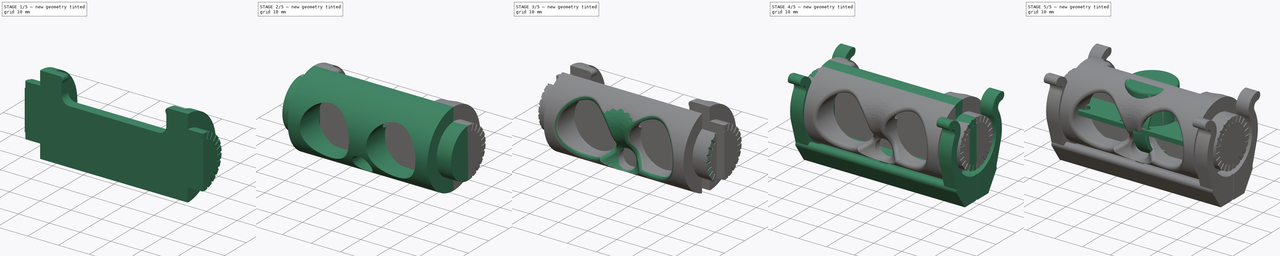
[diagram: build sequence overview — one tinted view per stage of 5, left to right]
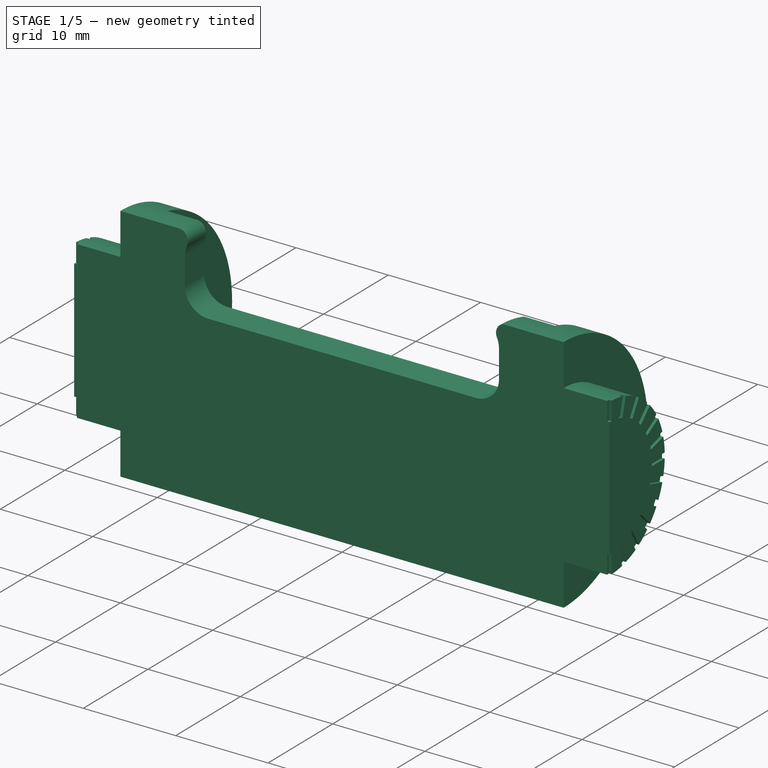
[diagram: stage 1 of 5 — iso view after this stage's code; geometry added in this stage tinted green]
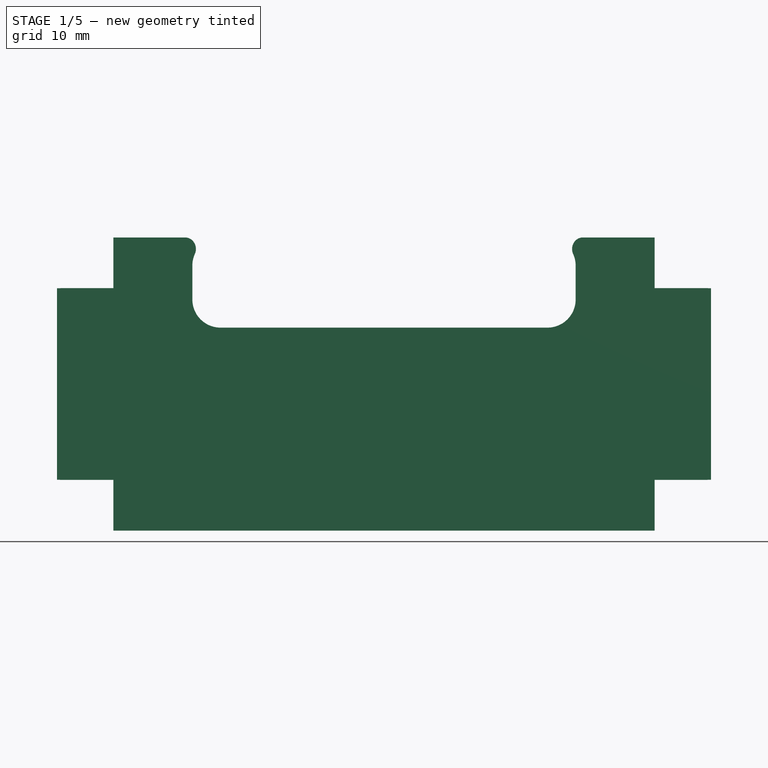
[diagram: stage 1 of 5 — front view after this stage's code; geometry added in this stage tinted green]
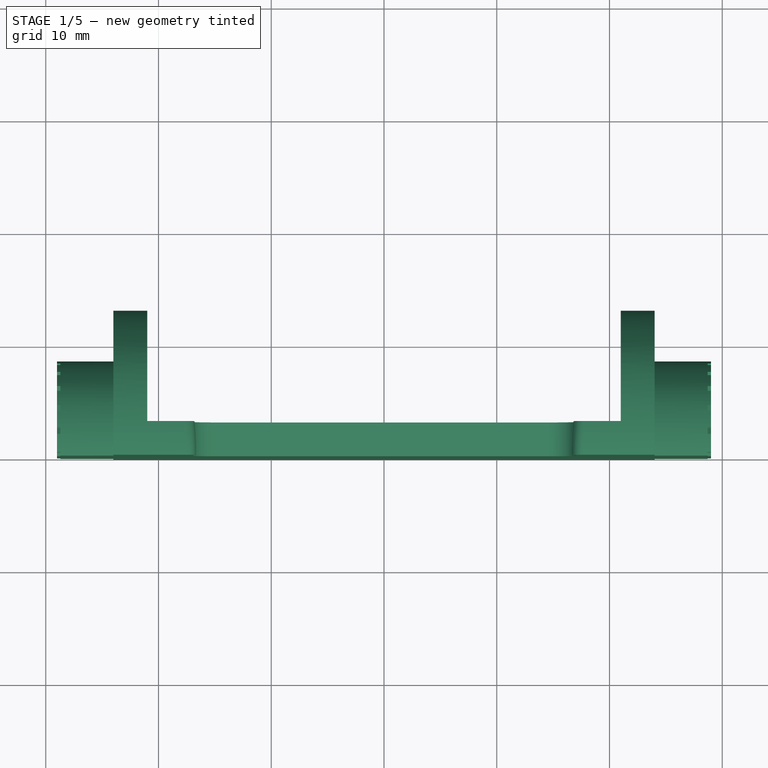
[diagram: stage 1 of 5 — top view after this stage's code; geometry added in this stage tinted green]
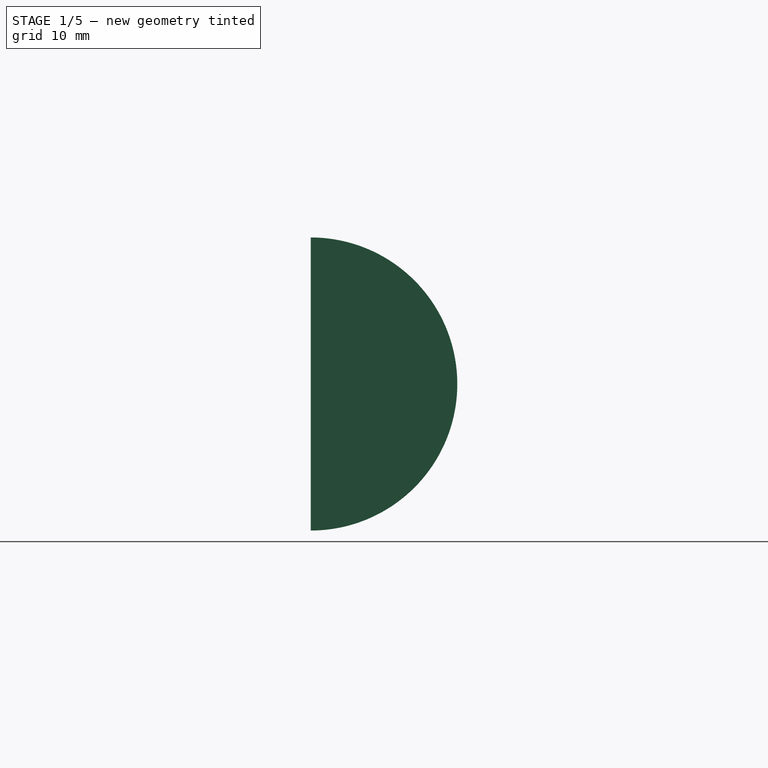
[diagram: stage 1 of 5 — right view after this stage's code; geometry added in this stage tinted green]
FCSTD DOCUMENT  (FreeCAD 1.0R39109 (Git))
Label: Capteur_ultrason_SRF08
License: All rights reserved
LicenseURL: http://en.wikipedia.org/wiki/All_rights_reserved
objects: Sketcher::SketchObject×22, PartDesign::Pocket×12, PartDesign::Body×7, PartDesign::Pad×7, PartDesign::Mirrored×7, PartDesign::Fillet×6, PartDesign::MultiTransform×5, App::Link×3, Part::FeaturePython×3, App::Part×3, PartDesign::Revolution×2, PartDesign::PolarPattern×2, Image::ImagePlane×2, PartDesign::Groove×1, Part::Part2DObjectPython×1, Part::Extrusion×1, App::DocumentObjectGroup×1
note: 168 computed .brp shape members not serialized (recipe doc carries the construction recipe); baked Part::Feature solids carry a one-line shape summary decoded from their .brp

FEATURE [Sketcher::SketchObject] Sketch010
  ArcFitTolerance = 0
  AttachmentSupport = -> [XZ_Plane006]
  FullyConstrained = true
  MakeInternals = false
  MapMode = 5
  Placement = pos=(0,0,0) rot=(1,0,0;1.5708rad)
  sketch-geometry (6):
    g0: LineSegment StartX=0 StartY=13 StartZ=0 EndX=24 EndY=13 EndZ=0
    g1: LineSegment StartX=0 StartY=0 StartZ=0 EndX=0 EndY=13 EndZ=0
    g2: LineSegment StartX=29 StartY=0 StartZ=0 EndX=29 EndY=8.5 EndZ=0
    g3: LineSegment StartX=29 StartY=8.5 StartZ=0 EndX=24 EndY=8.5 EndZ=0
    g4: LineSegment StartX=24 StartY=13 StartZ=0 EndX=24 EndY=8.5 EndZ=0
    g5: LineSegment StartX=0 StartY=0 StartZ=0 EndX=29 EndY=0 EndZ=0
  constraints (17):
    c: Coincident(g1,g0)
    c: Horizontal(g0)
    c: PointOnObject(g0,g-2)
    c: Coincident(g2,g3)
    c: Horizontal(g3)
    c: Vertical(g2)
    c: Coincident(g4,g0)
    c: Coincident(g4,g3)
    c: Vertical(g4)
    c: DistanceX(g0,g0) = 24
    c: DistanceX(g3,g3) = 5
    c: DistanceY(g4,g4) = 4.5
    c: Coincident(g5,g-1)
    c: Horizontal(g5)
    c: Coincident(g2,g5)
    c: DistanceY(g1,g1) = 13
    c: Coincident(g1,g5)
FEATURE [PartDesign::Mirrored] Mirrored001
  MirrorPlane = -> Sketch010 [V_Axis]
  Placement = pos=(0,0,0) rot=(1,0,0;1.5708rad)
  Suppressed = false
  TransformMode = 0
FEATURE [PartDesign::Revolution] Revolution001
  Angle = 180
  Angle2 = 60
  Axis = (1,0,0)
  Base = (0,0,0)
  Placement = pos=(0,0,0) rot=(1,0,0;1.5708rad)
  Profile = -> Sketch010
  ReferenceAxis = -> Sketch010 [H_Axis]
  Reversed = true
  Suppressed = false
  Type = 0
FEATURE [Sketcher::SketchObject] Sketch016
  ArcFitTolerance = 0
  AttachmentSupport = -> [XZ_Plane006]
  FullyConstrained = true
  MakeInternals = false
  MapMode = 5
  Placement = pos=(0,0,0) rot=(0,0.707107,0.707107;3.14159rad)
  sketch-geometry (6):
    g0: LineSegment StartX=-14.5 StartY=5 StartZ=0 EndX=0 EndY=5 EndZ=0
    g1: LineSegment StartX=0 StartY=5 StartZ=0 EndX=0 EndY=13 EndZ=0
    g2: LineSegment StartX=-14.5 StartY=13 StartZ=0 EndX=0 EndY=13 EndZ=0
    g3: ArcOfCircle CenterX=-14.5 CenterY=7.5 CenterZ=0 NormalX=0 NormalY=0 NormalZ=1 AngleXU=0 Radius=2.5 StartAngle=3.14159 EndAngle=4.71239
    g4: ArcOfCircle CenterX=-14.5 CenterY=10.5 CenterZ=0 NormalX=0 NormalY=0 NormalZ=1 AngleXU=0 Radius=2.5 StartAngle=1.5708 EndAngle=3.14159
    g5: LineSegment StartX=-17 StartY=7.5 StartZ=0 EndX=-17 EndY=10.5 EndZ=0
  constraints (16):
    c: Coincident(g0,g1)
    c: Horizontal(g0)
    c: Vertical(g1)
    c: PointOnObject(g1,g-2)
    c: Horizontal(g2)
    c: Coincident(g1,g2)
    c: DistanceY(g1) = 13
    c: Tangent(g0,g3) = -1.5708
    c: DistanceY(g1,g1) = 8
    c: Tangent(g4,g2) = 1.5708
    c: Tangent(g4,g5) = 1.5708
    c: Tangent(g5,g3) = 1.5708
    c: DistanceX(g0,g0) = 14.5
    c: Vertical(g5)
    c: Equal(g4,g3)
    c: Diameter(g4) = 5
FEATURE [PartDesign::Pocket] Pocket007
  BaseFeature = -> Revolution001
  Direction = (0,-1,2e-16)
  Length = 5
  Length2 = 5
  Placement = pos=(0,0,0) rot=(1,0,0;1.5708rad)
  Profile = -> Sketch016
  ReferenceAxis = -> Sketch016 [N_Axis]
  Reversed = true
  Suppressed = false
  Type = 1
FEATURE [PartDesign::MultiTransform] MultiTransform001
  BaseFeature = -> Pocket007
  Originals = -> [Revolution001,Pocket007]
  Placement = pos=(0,0,0) rot=(1,0,0;1.5708rad)
  Refine = true
  Suppressed = false
  TransformMode = 0
  Transformations = -> [Mirrored001]
FEATURE [PartDesign::Body] Body003  label="avant"
  AllowCompound = false
  Group = -> [Sketch004,Pad002,Sketch005,Pad003,Sketch006,Pocket001,Sketch007,Pocket002,Sketch008,Pocket003,Sketch009,Pocket004,MultiTransform,Mirrored,Sketch019,Groove,Fillet004,Fillet005,Sketch020,Pocket008,MultiTransform003,PolarPattern,Mirrored004]
  Origin = -> Origin004
  Tip = -> MultiTransform003
FEATURE [Sketcher::SketchObject] Sketch021
  ArcFitTolerance = 0
  AttachmentOffset = pos=(0,0,3) rot=(0,0,1;0rad)
  AttachmentSupport = -> [XZ_Plane006]
  FullyConstrained = true
  MakeInternals = false
  MapMode = 5
  Placement = pos=(0,3,-7e-16) rot=(0,0.707107,0.707107;3.14159rad)
  sketch-geometry (4):
    g0: LineSegment StartX=-21 StartY=15 StartZ=0 EndX=21 EndY=15 EndZ=0
    g1: LineSegment StartX=21 StartY=15 StartZ=0 EndX=21 EndY=-15 EndZ=0
    g2: LineSegment StartX=21 StartY=-15 StartZ=0 EndX=-21 EndY=-15 EndZ=0
    g3: LineSegment StartX=-21 StartY=-15 StartZ=0 EndX=-21 EndY=15 EndZ=0
  constraints (11):
    c: Coincident(g0,g1)
    c: Coincident(g1,g2)
    c: Coincident(g2,g3)
    c: Coincident(g3,g0)
    c: Horizontal(g0)
    c: Horizontal(g2)
    c: Vertical(g1)
    c: Vertical(g3)
    c: Symmetric(g1,g0,g-1)
    c: DistanceY(g1,g1) = 30
    c: DistanceX(g0,g0) = 42
FEATURE [PartDesign::Pocket] Pocket009
  BaseFeature = -> MultiTransform001
  Direction = (0,-1,2e-16)
  Length = 5
  Length2 = 5
  Placement = pos=(0,0,0) rot=(1,0,0;1.5708rad)
  Profile = -> Sketch021
  ReferenceAxis = -> Sketch021 [N_Axis]
  Reversed = true
  Suppressed = false
  Type = 1
FEATURE [Sketcher::SketchObject] Sketch022
  ArcFitTolerance = 0
  AttachmentOffset = pos=(0,0,29) rot=(0,0,1;0rad)
  AttachmentSupport = -> [YZ_Plane006]
  FullyConstrained = true
  MakeInternals = false
  MapMode = 5
  Placement = pos=(29,0,0) rot=(0.57735,0.57735,0.57735;2.0944rad)
  sketch-geometry (4):
    g0: LineSegment StartX=-0.3 StartY=6.5 StartZ=0 EndX=0.3 EndY=6.5 EndZ=0
    g1: LineSegment StartX=0.3 StartY=6.5 StartZ=0 EndX=0.3 EndY=8.5 EndZ=0
    g2: LineSegment StartX=0.3 StartY=8.5 StartZ=0 EndX=-0.3 EndY=8.5 EndZ=0
    g3: LineSegment StartX=-0.3 StartY=8.5 StartZ=0 EndX=-0.3 EndY=6.5 EndZ=0
  constraints (11):
    c: Coincident(g0,g1)
    c: Coincident(g1,g2)
    c: Coincident(g2,g3)
    c: Coincident(g3,g0)
    c: Horizontal(g2)
    c: Vertical(g1)
    c: Vertical(g3)
    c: Symmetric(g0,g0,g-2)
    c: DistanceY(g-1,g0) = 6.5
    c: DistanceY(g3,g3) = 2
    c: DistanceX(g2,g2) = 0.6
FEATURE [PartDesign::Pocket] Pocket010
  BaseFeature = -> Pocket009
  Direction = (-1,0,0)
  Length = 0.3
  Length2 = 5
  Placement = pos=(0,0,0) rot=(1,0,0;1.5708rad)
  Profile = -> Sketch022
  ReferenceAxis = -> Sketch022 [N_Axis]
  Suppressed = false
  Type = 0
FEATURE [PartDesign::PolarPattern] PolarPattern001
  Angle = 180
  Axis = -> Sketch022 [N_Axis]
  Mode = 0
  Occurrences = 13
  Offset = 120
  Placement = pos=(0,0,0) rot=(1,0,0;1.5708rad)
  Reversed = true
  Suppressed = false
  TransformMode = 0
FEATURE [PartDesign::Mirrored] Mirrored005
  MirrorPlane = -> YZ_Plane006
  Placement = pos=(0,0,0) rot=(1,0,0;1.5708rad)
  Suppressed = false
  TransformMode = 0
FEATURE [PartDesign::MultiTransform] MultiTransform004
  BaseFeature = -> Pocket010
  Originals = -> [Pocket010]
  Placement = pos=(0,0,0) rot=(1,0,0;1.5708rad)
  Suppressed = false
  TransformMode = 0
  Transformations = -> [PolarPattern001,Mirrored005]
FEATURE [App::DocumentObjectGroup] GrExplode_Slice  label="Exploded Slice"
  Group = -> [Slice_child0,Slice_child1]
FEATURE [Image::ImagePlane] srf08con
  Placement = pos=(0,0,0) rot=(-0.707107,-0.707107,0;3.14159rad)
  XSize = 20.3895
  YSize = 43.9428
FEATURE [PartDesign::Fillet] Fillet006
  Base = -> MultiTransform004 [Edge190,Edge196]
  BaseFeature = -> MultiTransform004
  Placement = pos=(0,0,0) rot=(1,0,0;1.5708rad)
  Radius = 1
  SupportTransform = false
  Suppressed = false
  UseAllEdges = false
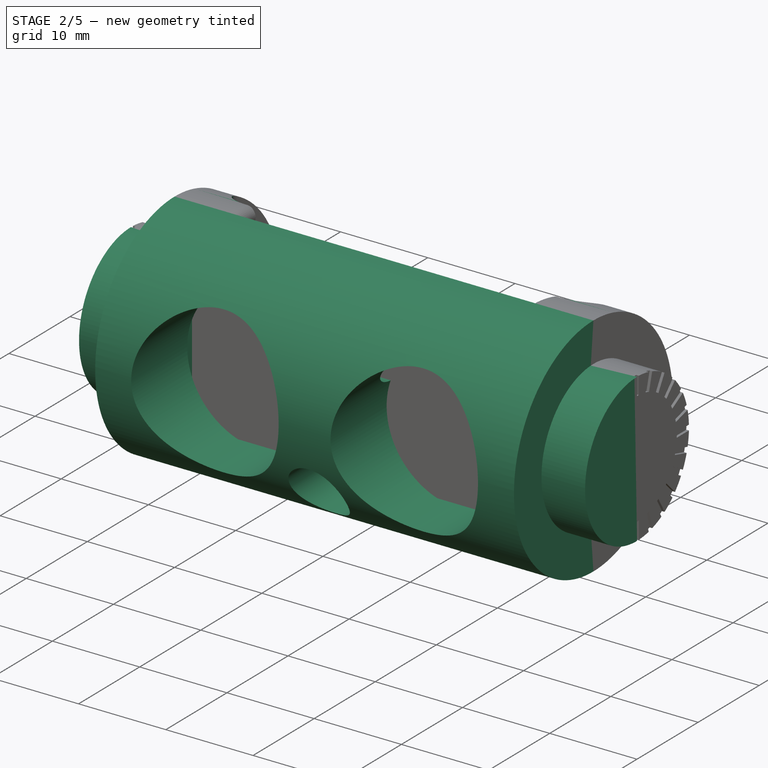
[diagram: stage 2 of 5 — iso view after this stage's code; geometry added in this stage tinted green]
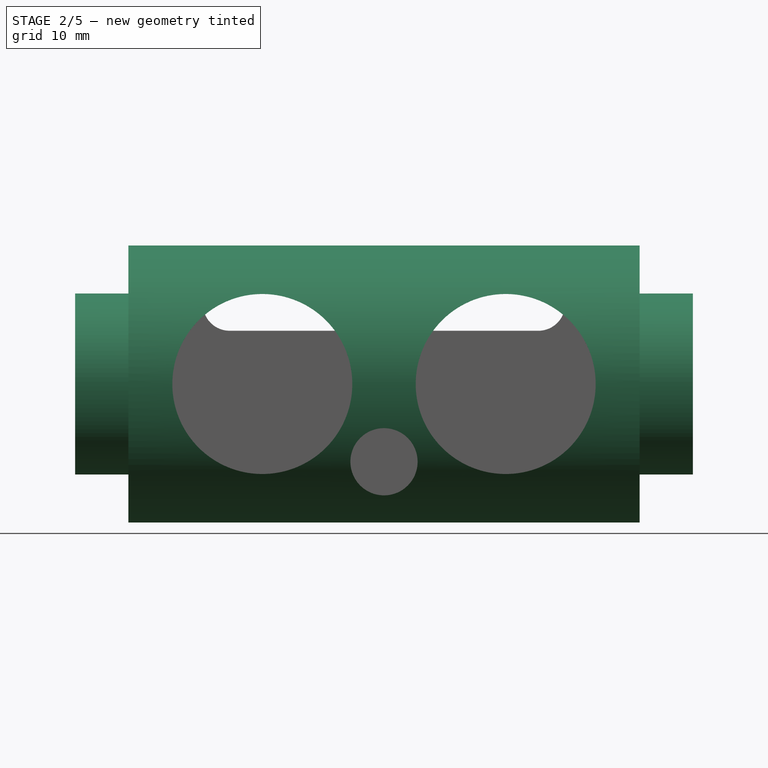
[diagram: stage 2 of 5 — front view after this stage's code; geometry added in this stage tinted green]
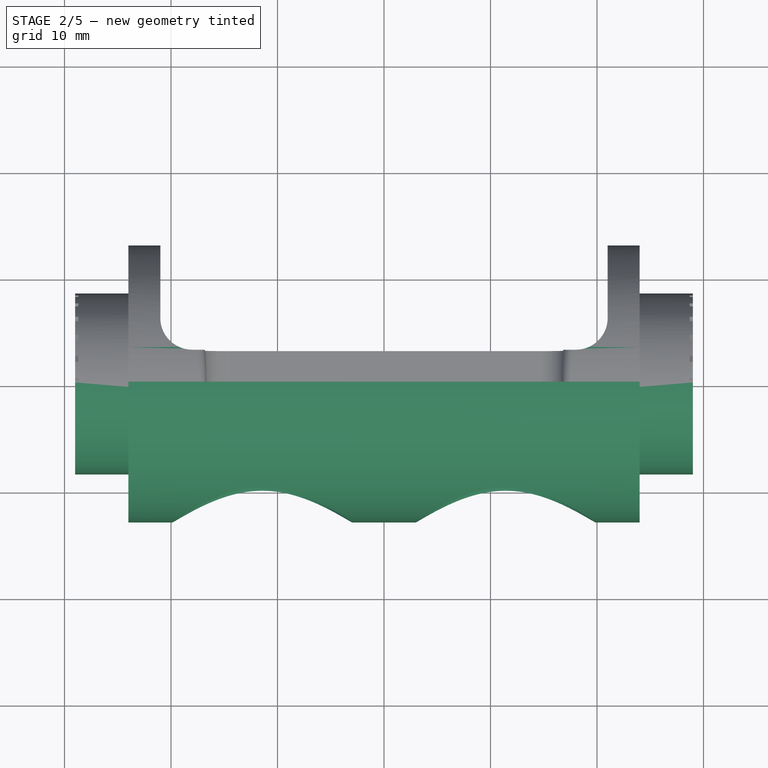
[diagram: stage 2 of 5 — top view after this stage's code; geometry added in this stage tinted green]
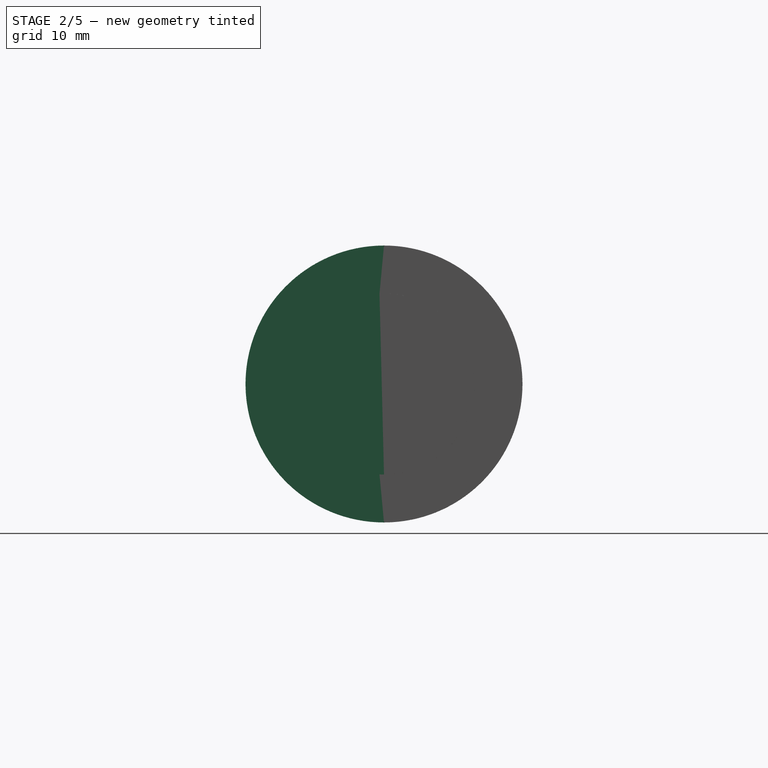
[diagram: stage 2 of 5 — right view after this stage's code; geometry added in this stage tinted green]
FEATURE [PartDesign::Body] Body  label="PCB"
  AllowCompound = false
  Group = -> [Sketch,Pad]
  Origin = -> Origin001
  Tip = -> Pad
FEATURE [App::Link] Link001  label="anneau001"
  LinkPlacement = pos=(-24,7.62876e-07,0) rot=(0,0,1;3.14159rad)
  LinkedObject = -> Body005
  Placement = pos=(-24,7.62876e-07,0) rot=(0,0,1;3.14159rad)
FEATURE [PartDesign::Mirrored] Mirrored
  MirrorPlane = -> YZ_Plane004
  Placement = pos=(0,0,0) rot=(1,1,1;2.0944rad)
  Suppressed = false
  TransformMode = 0
FEATURE [PartDesign::Mirrored] Mirrored003
  MirrorPlane = -> YZ_Plane008
  Placement = pos=(0,0,0) rot=(1,1,1;2.0944rad)
  Suppressed = false
  TransformMode = 0
FEATURE [Sketcher::SketchObject] Sketch004
  ArcFitTolerance = 0
  AttachmentSupport = -> [YZ_Plane004]
  FullyConstrained = true
  MakeInternals = false
  MapMode = 5
  Placement = pos=(0,0,0) rot=(0.57735,0.57735,0.57735;2.0944rad)
  sketch-geometry (2):
    g0: ArcOfCircle CenterX=0 CenterY=0 CenterZ=0 NormalX=0 NormalY=0 NormalZ=1 AngleXU=0 Radius=13 StartAngle=1.5708 EndAngle=4.71239
    g1: LineSegment StartX=-2.4e-15 StartY=13 StartZ=0 EndX=-2.4e-15 EndY=-13 EndZ=0
  constraints (6):
    c: Diameter(g0) = 26
    c: Coincident(g0,g1)
    c: PointOnObject(g0,g-2)
    c: Vertical(g1)
    c: Coincident(g1,g0)
    c: Coincident(g0,g-1)
FEATURE [PartDesign::Pad] Pad002
  Direction = (1,0,0)
  Length = 24
  Length2 = 10
  Placement = pos=(0,0,0) rot=(1,1,1;2.0944rad)
  Profile = -> Sketch004
  ReferenceAxis = -> Sketch004 [N_Axis]
  Suppressed = false
  Type = 0
FEATURE [Sketcher::SketchObject] Sketch005
  ArcFitTolerance = 0
  AttachmentOffset = pos=(0,0,24) rot=(0,0,1;0rad)
  AttachmentSupport = -> [YZ_Plane004]
  FullyConstrained = true
  MakeInternals = false
  MapMode = 5
  Placement = pos=(24,0,0) rot=(0.57735,0.57735,0.57735;2.0944rad)
  expr: .AttachmentOffset.Base.z = <<Pad002>>.Length
  sketch-geometry (2):
    g0: ArcOfCircle CenterX=0 CenterY=0 CenterZ=0 NormalX=0 NormalY=0 NormalZ=1 AngleXU=0 Radius=8.5 StartAngle=1.5708 EndAngle=4.71239
    g1: LineSegment StartX=2.09785e-11 StartY=8.5 StartZ=0 EndX=2.09785e-11 EndY=-8.5 EndZ=0
  constraints (6):
    c: Coincident(g0,g-1)
    c: Vertical(g1)
    c: Coincident(g0,g1)
    c: Coincident(g0,g1)
    c: PointOnObject(g0,g-2)
    c: Diameter(g0) = 17
FEATURE [PartDesign::Pad] Pad003
  BaseFeature = -> Pad002
  Direction = (1,0,0)
  Length = 5
  Length2 = 10
  Placement = pos=(0,0,0) rot=(1,1,1;2.0944rad)
  Profile = -> Sketch005
  ReferenceAxis = -> Sketch005 [N_Axis]
  Suppressed = false
  Type = 0
FEATURE [Sketcher::SketchObject] Sketch006
  ArcFitTolerance = 0
  AttachmentSupport = -> [YZ_Plane004]
  FullyConstrained = true
  MakeInternals = false
  MapMode = 5
  Placement = pos=(0,0,0) rot=(0.57735,-0.57735,-0.57735;2.0944rad)
  expr: Constraints[10] = 10 + 0.2
  expr: Constraints[9] = 1.52 + 0.3 + 2
  sketch-geometry (4):
    g0: LineSegment StartX=0 StartY=10.2 StartZ=0 EndX=3.82 EndY=10.2 EndZ=0
    g1: LineSegment StartX=3.82 StartY=10.2 StartZ=0 EndX=3.82 EndY=-10.2 EndZ=0
    g2: LineSegment StartX=3.82 StartY=-10.2 StartZ=0 EndX=0 EndY=-10.2 EndZ=0
    g3: LineSegment StartX=0 StartY=-10.2 StartZ=0 EndX=0 EndY=10.2 EndZ=0
  constraints (11):
    c: Coincident(g0,g1)
    c: Coincident(g1,g2)
    c: Coincident(g2,g3)
    c: Coincident(g3,g0)
    c: Horizontal(g0)
    c: Horizontal(g2)
    c: Vertical(g1)
    c: Vertical(g3)
    c: Symmetric(g0,g2,g-1)
    c: DistanceX(g0) = 3.82
    c: DistanceY(g0) = 10.2
FEATURE [PartDesign::Pocket] Pocket001
  BaseFeature = -> Pad003
  Direction = (1,0,0)
  Length = 22
  Length2 = 5
  Placement = pos=(0,0,0) rot=(1,1,1;2.0944rad)
  Profile = -> Sketch006
  ReferenceAxis = -> Sketch006 [N_Axis]
  Suppressed = false
  Type = 0
FEATURE [Sketcher::SketchObject] Sketch007
  ArcFitTolerance = 0
  AttachmentOffset = pos=(11.425,0,0) rot=(0,0,1;0rad)
  AttachmentSupport = -> [XZ_Plane004]
  FullyConstrained = true
  MakeInternals = false
  MapMode = 5
  Placement = pos=(11.425,0,0) rot=(1,0,0;1.5708rad)
  expr: .AttachmentOffset.Base.x = 22.85 / 2
  sketch-geometry (1):
    g0: Circle CenterX=0 CenterY=0 CenterZ=0 NormalX=0 NormalY=0 NormalZ=1 AngleXU=0 Radius=8.45
  constraints (2):
    c: Coincident(g0,g-1)
    c: Diameter(g0) = 16.9
FEATURE [PartDesign::Pocket] Pocket002
  BaseFeature = -> Pocket001
  Direction = (0,1,-2e-16)
  Length = 5
  Length2 = 5
  Placement = pos=(0,0,0) rot=(1,1,1;2.0944rad)
  Profile = -> Sketch007
  ReferenceAxis = -> Sketch007 [N_Axis]
  Reversed = true
  Suppressed = false
  Type = 1
FEATURE [Sketcher::SketchObject] Sketch008
  ArcFitTolerance = 0
  AttachmentOffset = pos=(0,-7.3,0) rot=(0,0,1;0rad)
  AttachmentSupport = -> [XZ_Plane004]
  FullyConstrained = true
  MakeInternals = false
  MapMode = 5
  Placement = pos=(0,-1.6e-15,-7.3) rot=(1,0,0;1.5708rad)
  sketch-geometry (2):
    g0: ArcOfCircle CenterX=0 CenterY=0 CenterZ=0 NormalX=0 NormalY=0 NormalZ=1 AngleXU=0 Radius=3.155 StartAngle=4.71239 EndAngle=7.85398
    g1: LineSegment StartX=1e-15 StartY=3.155 StartZ=0 EndX=1e-15 EndY=-3.155 EndZ=0
  constraints (6):
    c: Coincident(g0,g-1)
    c: Vertical(g1)
    c: Coincident(g0,g1)
    c: Coincident(g0,g1)
    c: PointOnObject(g0,g-2)
    c: Diameter(g0) = 6.31
FEATURE [PartDesign::Pocket] Pocket003
  BaseFeature = -> Pocket002
  Direction = (0,1,-2e-16)
  Length = 13
  Length2 = 5
  Placement = pos=(0,0,0) rot=(1,1,1;2.0944rad)
  Profile = -> Sketch008
  ReferenceAxis = -> Sketch008 [N_Axis]
  Reversed = true
  Suppressed = false
  Type = 0
FEATURE [Sketcher::SketchObject] Sketch009
  ArcFitTolerance = 0
  AttachmentSupport = -> [YZ_Plane004]
  FullyConstrained = true
  MakeInternals = false
  MapMode = 5
  Placement = pos=(0,0,0) rot=(0.57735,-0.57735,-0.57735;2.0944rad)
  expr: Constraints[3] = 1.52 + 2
  sketch-geometry (2):
    g0: ArcOfCircle CenterX=3.52 CenterY=6.5 CenterZ=0 NormalX=0 NormalY=0 NormalZ=1 AngleXU=0 Radius=3.75 StartAngle=4.71239 EndAngle=7.85398
    g1: LineSegment StartX=3.52 StartY=10.25 StartZ=0 EndX=3.52 EndY=2.75 EndZ=0
  constraints (7):
    c: Coincident(g1,g0)
    c: Coincident(g1,g0)
    c: Vertical(g1)
    c: DistanceX(g0) = 3.52
    c: DistanceY(g0) = 6.5
    c: Diameter(g0) = 7.5
    c: Vertical(g0,g0)
FEATURE [PartDesign::Pocket] Pocket004
  BaseFeature = -> Pocket003
  Direction = (1,0,0)
  Length = 7
  Length2 = 5
  Placement = pos=(0,0,0) rot=(1,1,1;2.0944rad)
  Profile = -> Sketch009
  ReferenceAxis = -> Sketch009 [N_Axis]
  Suppressed = false
  Type = 0
FEATURE [PartDesign::MultiTransform] MultiTransform
  BaseFeature = -> Pocket004
  Originals = -> [Pad002,Pad003,Pocket001,Pocket002,Pocket003,Pocket004]
  Placement = pos=(0,0,0) rot=(1,1,1;2.0944rad)
  Refine = true
  Suppressed = false
  TransformMode = 0
  Transformations = -> [Mirrored]
FEATURE [PartDesign::Fillet] Fillet007
  Base = -> Fillet006 [Edge266,Edge265]
  BaseFeature = -> Fillet006
  Placement = pos=(0,0,0) rot=(1,0,0;1.5708rad)
  Radius = 3
  SupportTransform = false
  Suppressed = false
  UseAllEdges = false
FEATURE [PartDesign::Body] Body004  label="arriere"
  AllowCompound = false
  Group = -> [Sketch010,Revolution001,Sketch016,Pocket007,MultiTransform001,Mirrored001,Sketch021,Pocket009,Sketch022,Pocket010,MultiTransform004,PolarPattern001,Mirrored005,Fillet006,Fillet007]
  Origin = -> Origin006
  Tip = -> Fillet007
FEATURE [App::Part] Part002  label="partie_mobile"
  Group = -> [Body003,Body004,Body005,Link001,Link002,Line,Extrude]
  Origin = -> Origin009
FEATURE [App::Part] Part001  label="support_2_axes_SRF08"
  Group = -> [Body006,Part002]
  Origin = -> Origin005
  Placement = pos=(0,-4e-16,-2) rot=(0,-0.707107,0.707107;3.14159rad)
FEATURE [Image::ImagePlane] srf08_beam
  Placement = pos=(0,-3.1e-15,14) rot=(1,0,0;1.5708rad)
  XSize = 61.9211
  YSize = 60.0688
FEATURE [App::Part] Part  label="SRF08"
  Group = -> [Body,Body001,Body002,Link,srf08con,srf08_beam]
  Origin = -> Origin
  Placement = pos=(0,0,0) rot=(0,0,1;3.14159rad)
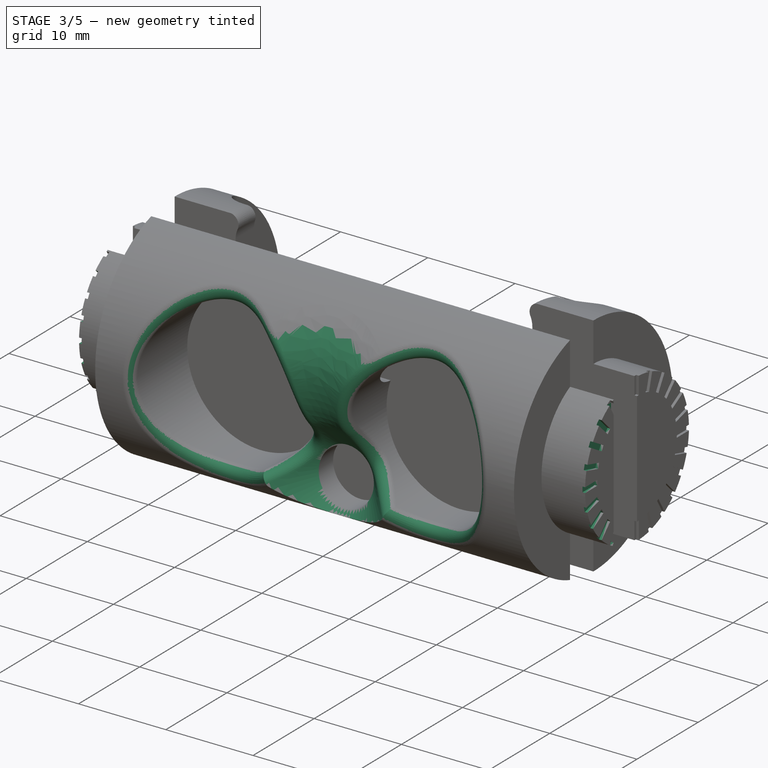
[diagram: stage 3 of 5 — iso view after this stage's code; geometry added in this stage tinted green]
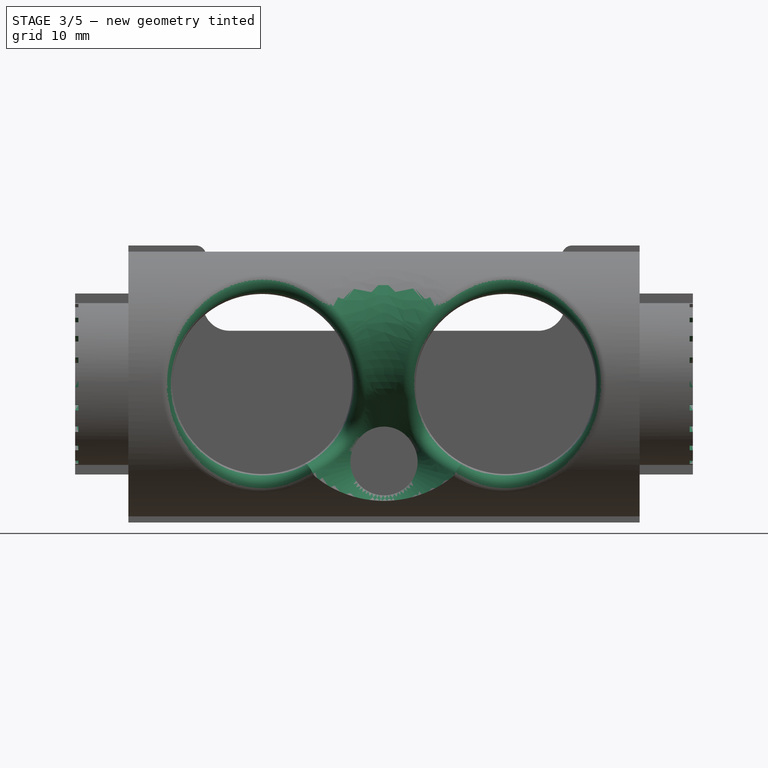
[diagram: stage 3 of 5 — front view after this stage's code; geometry added in this stage tinted green]
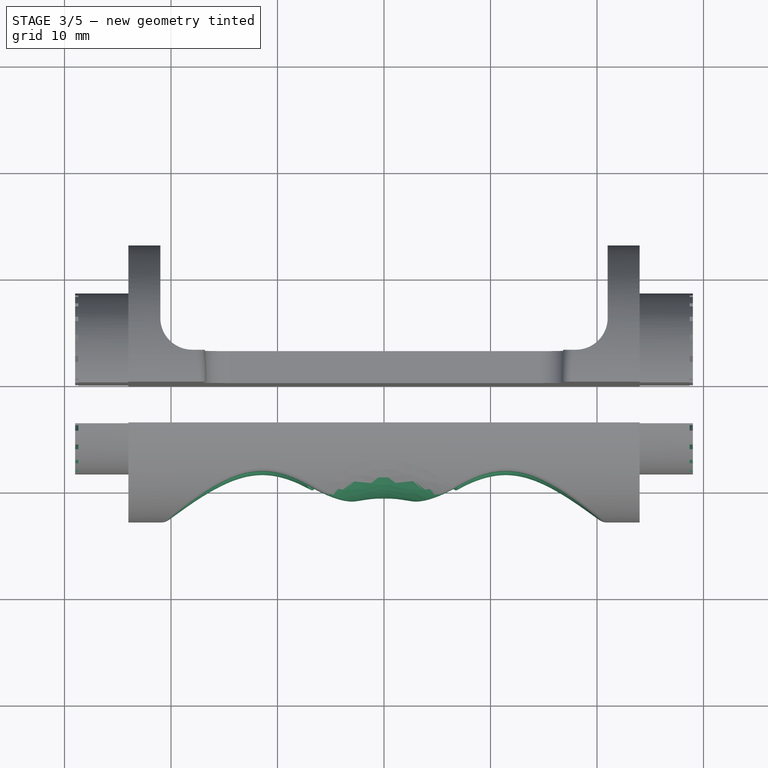
[diagram: stage 3 of 5 — top view after this stage's code; geometry added in this stage tinted green]
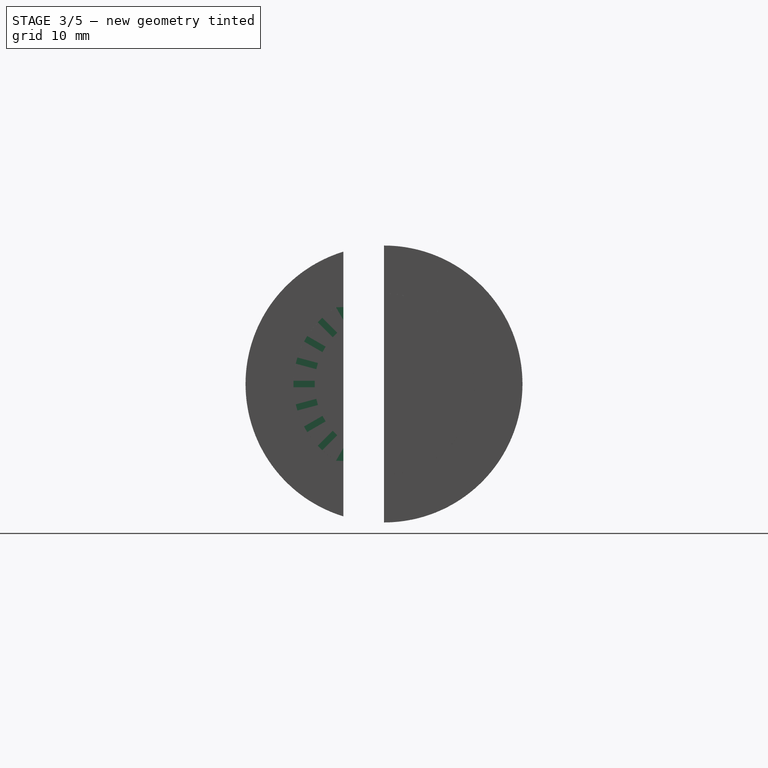
[diagram: stage 3 of 5 — right view after this stage's code; geometry added in this stage tinted green]
FEATURE [Sketcher::SketchObject] Sketch019
  ArcFitTolerance = 0
  AttachmentOffset = pos=(0,-6,-7) rot=(0,0,1;0rad)
  AttachmentSupport = -> [XY_Plane004]
  FullyConstrained = true
  MakeInternals = false
  MapMode = 5
  Placement = pos=(0,-6,-7) rot=(0,0,1;0rad)
  sketch-geometry (4):
    g0: LineSegment StartX=-3 StartY=0 StartZ=0 EndX=-23 EndY=-20 EndZ=0
    g1: LineSegment StartX=-23 StartY=-20 StartZ=0 EndX=0 EndY=-20 EndZ=0
    g2: LineSegment StartX=0 StartY=-20 StartZ=0 EndX=0 EndY=0 EndZ=0
    g3: LineSegment StartX=-3 StartY=0 StartZ=0 EndX=0 EndY=0 EndZ=0
  constraints (11):
    c: PointOnObject(g0,g-1)
    c: Coincident(g1,g0)
    c: PointOnObject(g1,g-2)
    c: Coincident(g2,g1)
    c: Coincident(g2,g-1)
    c: Coincident(g3,g0)
    c: Coincident(g3,g2)
    c: DistanceX(g3,g3) = 3
    c: Horizontal(g1)
    c: Angle(g0,g2) = 0.785398
    c: DistanceY(g2,g2) = 20
FEATURE [PartDesign::Groove] Groove
  Angle = 360
  Angle2 = 60
  Axis = (0,1,0)
  Base = (0,-6,-7)
  BaseFeature = -> MultiTransform
  Placement = pos=(0,0,0) rot=(1,1,1;2.0944rad)
  Profile = -> Sketch019
  ReferenceAxis = -> Sketch019 [V_Axis]
  Reversed = true
  Suppressed = false
  Type = 0
FEATURE [PartDesign::Fillet] Fillet004
  Base = -> Groove [Edge28]
  BaseFeature = -> Groove
  Placement = pos=(0,0,0) rot=(1,1,1;2.0944rad)
  Radius = 8
  SupportTransform = false
  Suppressed = false
  UseAllEdges = false
FEATURE [PartDesign::Fillet] Fillet005
  Base = -> Fillet004 [Edge1,Edge4]
  BaseFeature = -> Fillet004
  Placement = pos=(0,0,0) rot=(1,1,1;2.0944rad)
  Radius = 1
  SupportTransform = false
  Suppressed = false
  UseAllEdges = false
FEATURE [App::Link] Link002  label="SRF009"
  LinkPlacement = pos=(0,-2,0) rot=(0,0.707107,-0.707107;3.14159rad)
  LinkedObject = -> Part
  Placement = pos=(0,-2,0) rot=(0,0.707107,-0.707107;3.14159rad)
FEATURE [Sketcher::SketchObject] Sketch020
  ArcFitTolerance = 0
  AttachmentOffset = pos=(0,0,-29) rot=(0,0,1;0rad)
  AttachmentSupport = -> [YZ_Plane004]
  FullyConstrained = true
  MakeInternals = false
  MapMode = 5
  Placement = pos=(-29,0,0) rot=(0.57735,0.57735,0.57735;2.0944rad)
  sketch-geometry (6):
    g0: LineSegment [constr] StartX=0 StartY=0 StartZ=0 EndX=0 EndY=6.5 EndZ=0
    g1: LineSegment StartX=0.3 StartY=8.5 StartZ=0 EndX=0.3 EndY=6.5 EndZ=0
    g2: LineSegment StartX=0.3 StartY=6.5 StartZ=0 EndX=-0.3 EndY=6.5 EndZ=0
    g3: LineSegment StartX=-0.3 StartY=6.5 StartZ=0 EndX=-0.3 EndY=8.5 EndZ=0
    g4: ArcOfCircle CenterX=0 CenterY=0 CenterZ=0 NormalX=0 NormalY=0 NormalZ=1 AngleXU=0 Radius=8.50529 StartAngle=1.53552 EndAngle=1.60608
    g5: LineSegment [constr] StartX=0.3 StartY=8.5 StartZ=0 EndX=-0.3 EndY=8.5 EndZ=0
  constraints (16):
    c: Coincident(g0,g-1)
    c: Coincident(g1,g2)
    c: Coincident(g2,g3)
    c: Coincident(g4,g3)
    c: Coincident(g4,g1)
    c: Perpendicular(g0,g2)
    c: Symmetric(g1,g2,g0)
    c: Perpendicular(g2,g3)
    c: Parallel(g1,g3)
    c: Coincident(g5,g1)
    c: Coincident(g5,g3)
    c: Coincident(g4,g0)
    c: Distance(g2) = 0.6
    c: Distance(g1) = 2
    c: Distance(g0) = 6.5
    c: Vertical(g0)
FEATURE [PartDesign::Pocket] Pocket008
  BaseFeature = -> Fillet005
  Direction = (-1,0,0)
  Length = 0.3
  Length2 = 5
  Placement = pos=(0,0,0) rot=(1,1,1;2.0944rad)
  Profile = -> Sketch020
  ReferenceAxis = -> Sketch020 [N_Axis]
  Reversed = true
  Suppressed = false
  Type = 0
FEATURE [PartDesign::PolarPattern] PolarPattern
  Angle = 180
  Axis = -> X_Axis004
  Mode = 0
  Occurrences = 13
  Offset = 120
  Placement = pos=(0,0,0) rot=(1,1,1;2.0944rad)
  Suppressed = false
  TransformMode = 0
FEATURE [PartDesign::Mirrored] Mirrored004
  MirrorPlane = -> YZ_Plane004
  Placement = pos=(0,0,0) rot=(1,1,1;2.0944rad)
  Suppressed = false
  TransformMode = 0
FEATURE [PartDesign::MultiTransform] MultiTransform003
  BaseFeature = -> Pocket008
  Originals = -> [Pocket008]
  Placement = pos=(0,0,0) rot=(1,1,1;2.0944rad)
  Suppressed = false
  TransformMode = 0
  Transformations = -> [PolarPattern,Mirrored004]
FEATURE [PartDesign::Body] Body006  label="base"
  AllowCompound = false
  Group = -> [Sketch012,Pad005,Sketch013,Pad006,Sketch014,Pocket005,Sketch015,Pocket006,MultiTransform002,Mirrored002,Mirrored003,Sketch023,Pocket011,Mirrored006]
  Origin = -> Origin008
  Tip = -> Mirrored006
FEATURE [Part::Part2DObjectPython] Line  # Draft 2D object (typed FeaturePython)
  Area = 0
  ChamferSize = 0
  Closed = false
  End = (-31,-3.82,-18)
  FilletRadius = 0
  Length = 63
  MakeFace = true
  Placement = pos=(30.6949,-3.33905,3e-15) rot=(0.707107,0.707107,0;3.14159rad)
  Points = (2) [(-0.480949,1.30514,18),(-0.480949,-61.6949,18)]
  Start = (32,-3.82,-18)
  Subdivisions = 0
FEATURE [Part::Extrusion] Extrude
  Base = -> Line
  Dir = (0,0,1)
  DirMode = 0
  FaceMakerClass = Part::FaceMakerBullseye
  FaceMakerMode = 3
  LengthFwd = 40
  LengthRev = 0
  Solid = false
  Symmetric = false
FEATURE [Part::FeaturePython] Slice  # WARN: FeaturePython — macro-defined, semantics opaque (R4)
  Base = -> Body003
  Mode = 1
  Tolerance = 0
  Tools = -> [Extrude]
FEATURE [Part::FeaturePython] Slice_child1  label="Slice.1"  # WARN: FeaturePython — macro-defined, semantics opaque (R4)
  Base = -> Slice
  FilterType = 1
  Invert = false
  OverrideMaxVal = 0
  WindowFrom = 80
  WindowTo = 100
  items = 1
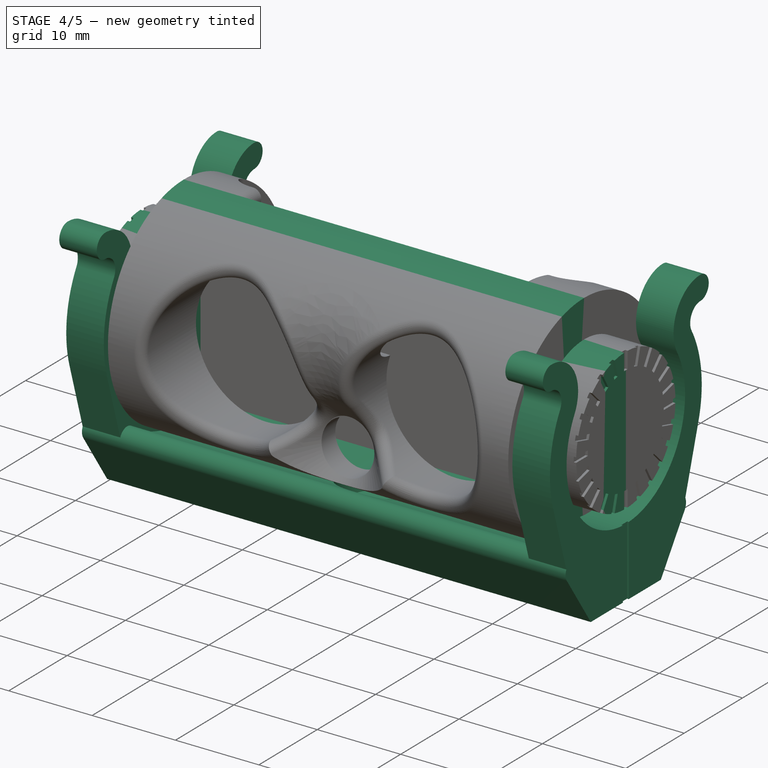
[diagram: stage 4 of 5 — iso view after this stage's code; geometry added in this stage tinted green]
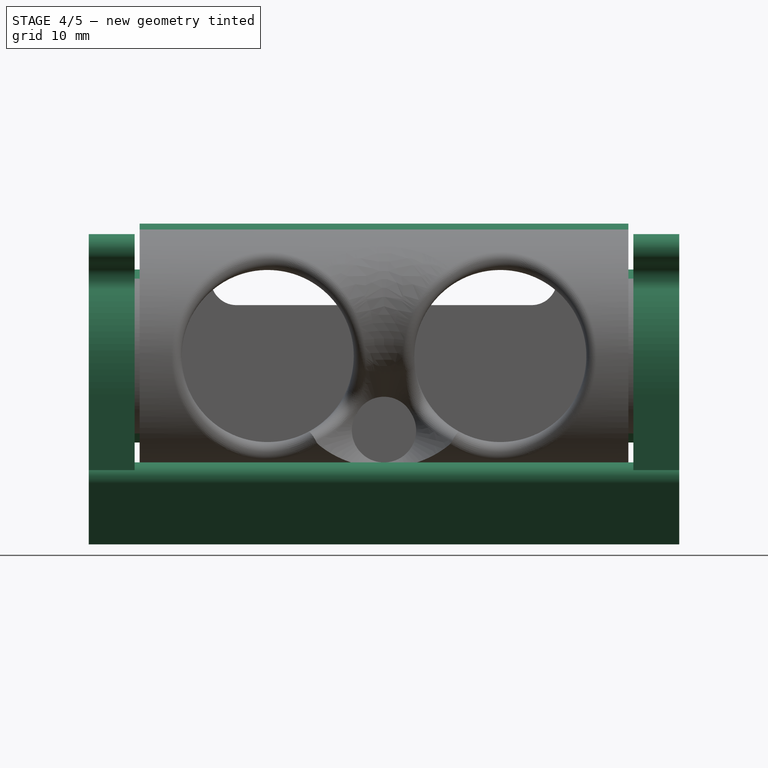
[diagram: stage 4 of 5 — front view after this stage's code; geometry added in this stage tinted green]
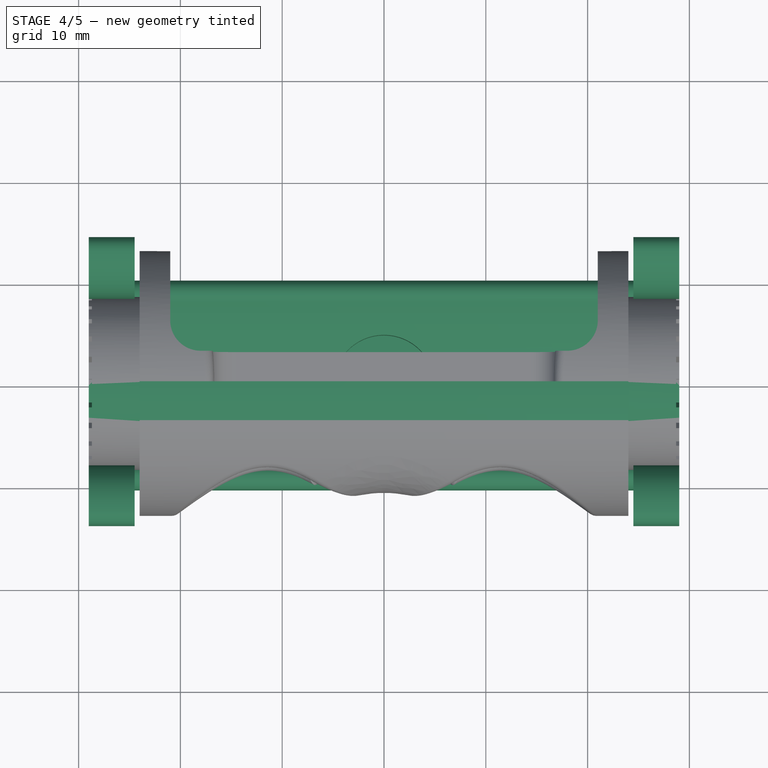
[diagram: stage 4 of 5 — top view after this stage's code; geometry added in this stage tinted green]
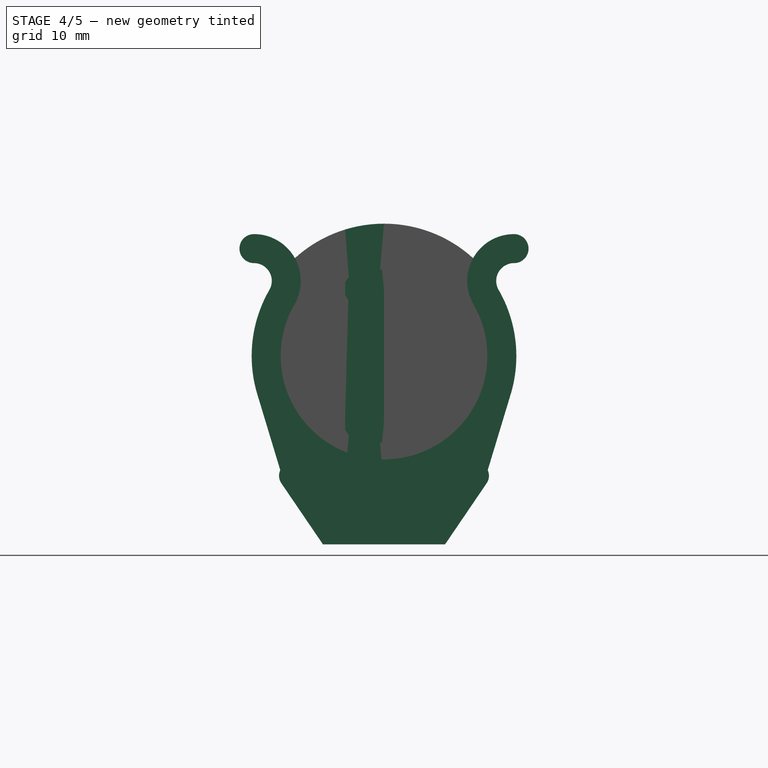
[diagram: stage 4 of 5 — right view after this stage's code; geometry added in this stage tinted green]
FEATURE [PartDesign::Body] Body005  label="anneau"
  AllowCompound = false
  Group = -> [Sketch011,Pad004,Fillet001]
  Origin = -> Origin007
  Placement = pos=(24,0,0) rot=(0,0,1;0rad)
  Tip = -> Fillet001
FEATURE [Sketcher::SketchObject] Sketch012
  ArcFitTolerance = 0
  AttachmentSupport = -> [YZ_Plane008]
  FullyConstrained = true
  MakeInternals = false
  MapMode = 5
  Placement = pos=(0,0,0) rot=(0.57735,0.57735,0.57735;2.0944rad)
  sketch-geometry (5):
    g0: ArcOfCircle CenterX=0 CenterY=0 CenterZ=0 NormalX=0 NormalY=0 NormalZ=1 AngleXU=0 Radius=13.5 StartAngle=4.71239 EndAngle=5.36551
    g1: LineSegment StartX=6 StartY=-18.5 StartZ=0 EndX=10.0836 EndY=-12.5 EndZ=0
    g2: ArcOfCircle CenterX=9 CenterY=-11.7625 CenterZ=0 NormalX=0 NormalY=0 NormalZ=1 AngleXU=0 Radius=1.31071 StartAngle=5.6856 EndAngle=8.5071
    g3: LineSegment StartX=-2.5e-15 StartY=-13.5 StartZ=0 EndX=-2.5e-15 EndY=-18.5 EndZ=0
    g4: LineSegment StartX=-2.5e-15 StartY=-18.5 StartZ=0 EndX=6 EndY=-18.5 EndZ=0
  constraints (14):
    c: Coincident(g0,g-1)
    c: Tangent(g2,g1) = -1.5708
    c: Tangent(g2,g0) = 1.5708
    c: Diameter(g0) = 27
    c: DistanceY(g1,g1) = 6
    c: Coincident(g3,g0)
    c: PointOnObject(g3,g-2)
    c: Vertical(g3)
    c: Coincident(g4,g3)
    c: Coincident(g4,g1)
    c: DistanceY(g3,g3) = 5
    c: DistanceX(g4,g4) = 6
    c: Horizontal(g4)
    c: DistanceX(g3,g2) = 9
FEATURE [PartDesign::Mirrored] Mirrored002
  MirrorPlane = -> Sketch012 [V_Axis]
  Placement = pos=(0,0,0) rot=(1,1,1;2.0944rad)
  Suppressed = false
  TransformMode = 0
FEATURE [PartDesign::Pad] Pad005
  Direction = (1,0,0)
  Length = 29
  Length2 = 10
  Placement = pos=(0,0,0) rot=(1,1,1;2.0944rad)
  Profile = -> Sketch012
  ReferenceAxis = -> Sketch012 [N_Axis]
  Suppressed = false
  Type = 0
FEATURE [Sketcher::SketchObject] Sketch013
  ArcFitTolerance = 0
  AttachmentOffset = pos=(0,0,29) rot=(0,0,1;0rad)
  AttachmentSupport = -> [YZ_Plane008]
  FullyConstrained = true
  MakeInternals = false
  MapMode = 5
  Placement = pos=(29,0,0) rot=(0.57735,0.57735,0.57735;2.0944rad)
  sketch-geometry (11):
    g0: ArcOfCircle CenterX=0 CenterY=0 CenterZ=0 NormalX=0 NormalY=0 NormalZ=1 AngleXU=0 Radius=10.15 StartAngle=4.71239 EndAngle=6.80678
    g1: ArcOfCircle CenterX=0 CenterY=0 CenterZ=0 NormalX=0 NormalY=0 NormalZ=1 AngleXU=0 Radius=13 StartAngle=5.98938 EndAngle=6.80678
    g2: ArcOfCircle CenterX=12.7739 CenterY=7.375 CenterZ=0 NormalX=0 NormalY=0 NormalZ=1 AngleXU=0 Radius=4.6 StartAngle=1.5708 EndAngle=3.66519
    g3: ArcOfCircle CenterX=12.7739 CenterY=7.375 CenterZ=0 NormalX=0 NormalY=0 NormalZ=1 AngleXU=0 Radius=1.75 StartAngle=1.5708 EndAngle=3.66519
    g4: ArcOfCircle CenterX=12.7739 CenterY=10.55 CenterZ=0 NormalX=0 NormalY=0 NormalZ=1 AngleXU=0 Radius=1.425 StartAngle=4.71239 EndAngle=7.85398
    g5: LineSegment StartX=-1.9e-15 StartY=-10.15 StartZ=0 EndX=0 EndY=-14.15 EndZ=0
    g6: LineSegment StartX=12.4429 StartY=-3.76473 StartZ=0 EndX=9.8 EndY=-12.5 EndZ=0
    g7: LineSegment [constr] StartX=0 StartY=0 StartZ=0 EndX=11.2583 EndY=6.5 EndZ=0
    g8: LineSegment [constr] StartX=12.7739 StartY=11.975 StartZ=0 EndX=12.7739 EndY=9.125 EndZ=0
    g9: LineSegment [constr] StartX=8.79016 StartY=5.075 StartZ=0 EndX=11.2583 EndY=6.5 EndZ=0
    g10: LineSegment StartX=9.8 StartY=-12.5 StartZ=0 EndX=0 EndY=-14.15 EndZ=0
  constraints (28):
    c: Coincident(g0,g-1)
    c: Coincident(g1,g0)
    c: Tangent(g4,g2) = -1.5708
    c: Tangent(g2,g0) = 1.5708
    c: Tangent(g4,g3) = 1.5708
    c: Tangent(g3,g1) = 1.5708
    c: Diameter(g0) = 20.3
    c: Diameter(g1) = 26
    c: PointOnObject(g0,g-2)
    c: Coincident(g5,g0)
    c: PointOnObject(g5,g-2)
    c: Coincident(g7,g0)
    c: Coincident(g7,g1)
    c: PointOnObject(g0,g7)
    c: Coincident(g8,g2)
    c: Coincident(g8,g3)
    c: Coincident(g9,g0)
    c: Equal(g9,g8)
    c: Coincident(g9,g1)
    c: Angle(g-1,g7) = 0.523599
    c: Vertical(g8)
    c: Diameter(g3) = 3.5
    c: Tangent(g6,g1) = 1.5708
    c: Coincident(g10,g6)
    c: Coincident(g10,g5)
    c: DistanceY(g5,g5) = 4
    c: DistanceX(g6) = 9.8
    c: DistanceY(g6) = -12.5
FEATURE [PartDesign::Pad] Pad006
  BaseFeature = -> Pad005
  Direction = (1,0,0)
  Length = 4.5
  Length2 = 10
  Placement = pos=(0,0,0) rot=(1,1,1;2.0944rad)
  Profile = -> Sketch013
  ReferenceAxis = -> Sketch013 [N_Axis]
  Refine = true
  Reversed = true
  Suppressed = false
  Type = 0
FEATURE [Sketcher::SketchObject] Sketch014
  ArcFitTolerance = 0
  AttachmentSupport = -> [XY_Plane008]
  FullyConstrained = true
  MakeInternals = false
  MapMode = 5
  sketch-geometry (1):
    g0: Circle CenterX=0 CenterY=0 CenterZ=0 NormalX=0 NormalY=0 NormalZ=1 AngleXU=0 Radius=2.75
  constraints (2):
    c: Coincident(g0,g-1)
    c: Diameter(g0) = 5.5
FEATURE [PartDesign::Pocket] Pocket005
  BaseFeature = -> Pad006
  Direction = (0,0,-1)
  Length = 5
  Length2 = 5
  Placement = pos=(0,0,0) rot=(1,1,1;2.0944rad)
  Profile = -> Sketch014
  ReferenceAxis = -> Sketch014 [N_Axis]
  Suppressed = false
  Type = 1
FEATURE [Sketcher::SketchObject] Sketch015
  ArcFitTolerance = 0
  AttachmentSupport = -> [XY_Plane008]
  FullyConstrained = true
  MakeInternals = false
  MapMode = 5
  sketch-geometry (1):
    g0: Circle CenterX=0 CenterY=0 CenterZ=0 NormalX=0 NormalY=0 NormalZ=1 AngleXU=0 Radius=5
  constraints (2):
    c: Coincident(g0,g-1)
    c: Diameter(g0) = 10
FEATURE [PartDesign::Pocket] Pocket006
  BaseFeature = -> Pocket005
  Direction = (0,0,-1)
  Length = 16.5
  Length2 = 5
  Placement = pos=(0,0,0) rot=(1,1,1;2.0944rad)
  Profile = -> Sketch015
  ReferenceAxis = -> Sketch015 [N_Axis]
  Suppressed = false
  Type = 0
FEATURE [PartDesign::MultiTransform] MultiTransform002
  BaseFeature = -> Pocket006
  Originals = -> [Pad005,Pad006,Pocket005,Pocket006]
  Placement = pos=(0,0,0) rot=(1,1,1;2.0944rad)
  Refine = true
  Suppressed = false
  TransformMode = 0
  Transformations = -> [Mirrored002,Mirrored003]
FEATURE [Sketcher::SketchObject] Sketch023
  ArcFitTolerance = 0
  AttachmentOffset = pos=(0,0,29) rot=(0,0,1;0rad)
  AttachmentSupport = -> [YZ_Plane008]
  FullyConstrained = true
  MakeInternals = false
  MapMode = 5
  Placement = pos=(29,0,0) rot=(0.57735,0.57735,0.57735;2.0944rad)
  sketch-geometry (4):
    g0: LineSegment StartX=-0.5 StartY=-20 StartZ=0 EndX=0.5 EndY=-20 EndZ=0
    g1: LineSegment StartX=0.5 StartY=-20 StartZ=0 EndX=0.5 EndY=-10 EndZ=0
    g2: LineSegment StartX=0.5 StartY=-10 StartZ=0 EndX=-0.5 EndY=-10 EndZ=0
    g3: LineSegment StartX=-0.5 StartY=-10 StartZ=0 EndX=-0.5 EndY=-20 EndZ=0
  constraints (11):
    c: Coincident(g0,g1)
    c: Coincident(g1,g2)
    c: Coincident(g2,g3)
    c: Coincident(g3,g0)
    c: Horizontal(g0)
    c: Vertical(g1)
    c: Vertical(g3)
    c: Symmetric(g1,g2,g-2)
    c: DistanceX(g2,g2) = 1
    c: DistanceY(g1,g-1) = 10
    c: DistanceY(g1,g1) = 10
FEATURE [PartDesign::Pocket] Pocket011
  BaseFeature = -> MultiTransform002
  Direction = (-1,0,0)
  Length = 0.2
  Length2 = 5
  Placement = pos=(0,0,0) rot=(1,1,1;2.0944rad)
  Profile = -> Sketch023
  ReferenceAxis = -> Sketch023 [N_Axis]
  Suppressed = false
  Type = 0
FEATURE [PartDesign::Mirrored] Mirrored006
  BaseFeature = -> Pocket011
  MirrorPlane = -> YZ_Plane008
  Originals = -> [Pocket011]
  Placement = pos=(0,0,0) rot=(1,1,1;2.0944rad)
  Suppressed = false
  TransformMode = 0
FEATURE [Part::FeaturePython] Slice_child0  label="Slice.0"  # WARN: FeaturePython — macro-defined, semantics opaque (R4)
  Base = -> Slice
  FilterType = 1
  Invert = false
  OverrideMaxVal = 0
  WindowFrom = 80
  WindowTo = 100
  items = 0
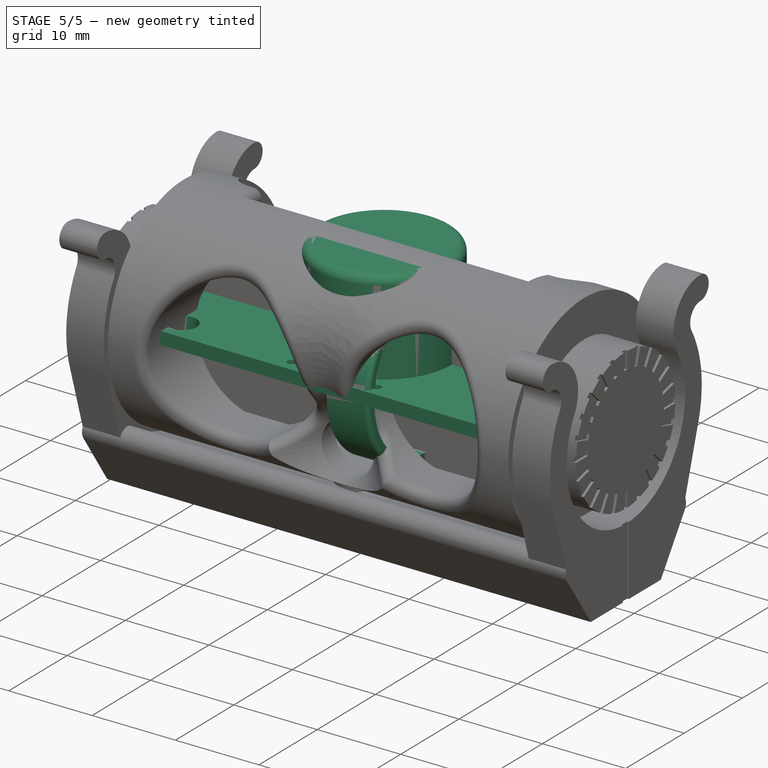
[diagram: stage 5 of 5 — iso view after this stage's code; geometry added in this stage tinted green]
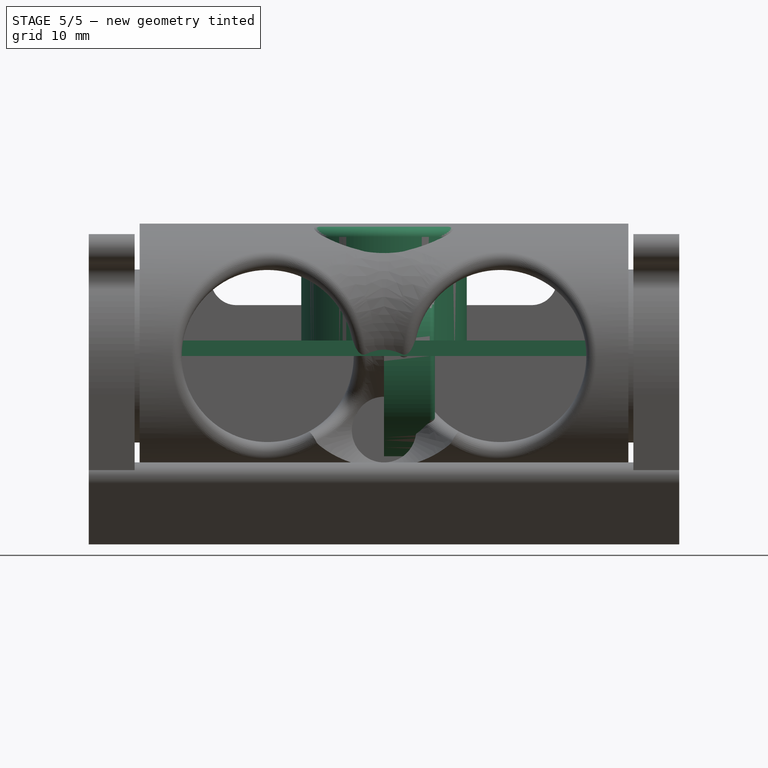
[diagram: stage 5 of 5 — front view after this stage's code; geometry added in this stage tinted green]
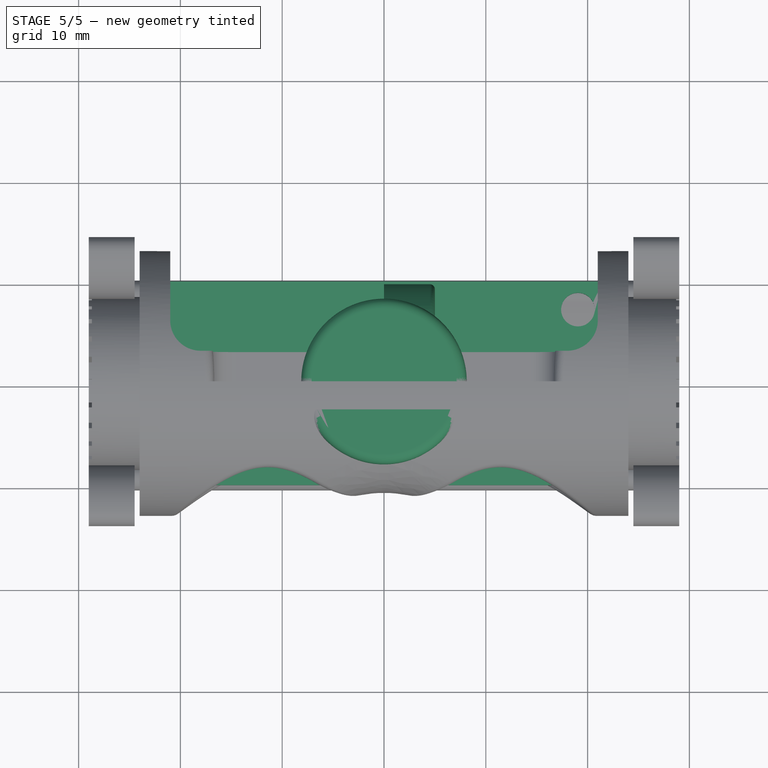
[diagram: stage 5 of 5 — top view after this stage's code; geometry added in this stage tinted green]
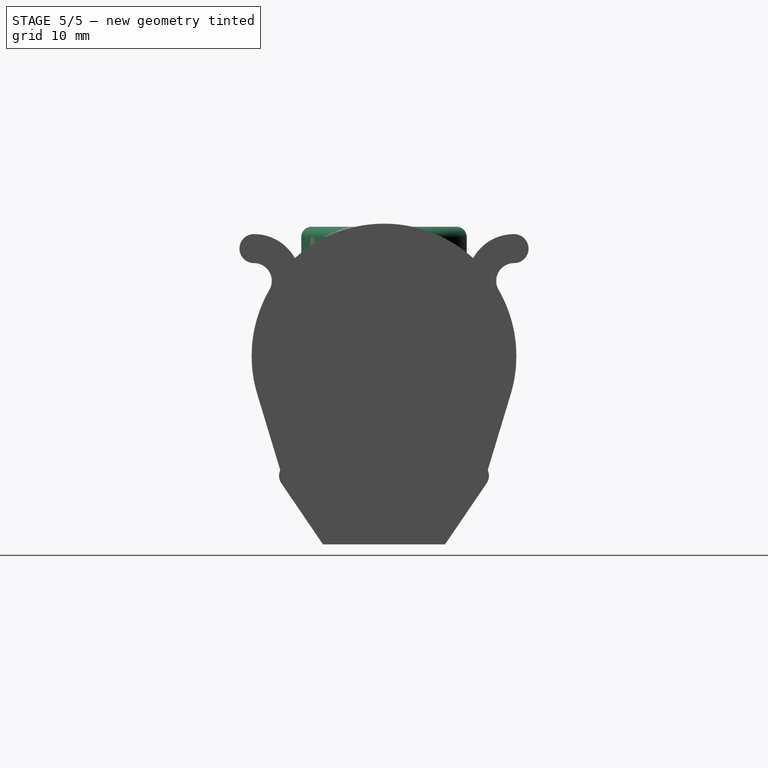
[diagram: stage 5 of 5 — right view after this stage's code; geometry added in this stage tinted green]
FEATURE [App::Link] Link  label="ultrason_module001"
  LinkPlacement = pos=(11.38,0,1.52) rot=(0,0,1;0rad)
  LinkedObject = -> Body001
  Placement = pos=(11.38,0,1.52) rot=(0,0,1;0rad)
  expr: .Placement.Base.x = -<<ultrason_module>>.Placement.Base.x
FEATURE [Sketcher::SketchObject] Sketch002
  ArcFitTolerance = 0
  AttachmentSupport = -> [XZ_Plane003]
  FullyConstrained = true
  MakeInternals = false
  MapMode = 5
  Placement = pos=(0,0,0) rot=(1,0,0;1.5708rad)
  expr: Constraints[14] = 5.7 - 4.2
  sketch-geometry (6):
    g0: LineSegment StartX=0 StartY=0 StartZ=0 EndX=0 EndY=5.7 EndZ=0
    g1: LineSegment StartX=0 StartY=5.7 StartZ=0 EndX=-2.4 EndY=5.7 EndZ=0
    g2: LineSegment StartX=-2.4 StartY=5.7 StartZ=0 EndX=-2.4 EndY=1.5 EndZ=0
    g3: LineSegment StartX=-2.85 StartY=0 StartZ=0 EndX=0 EndY=0 EndZ=0
    g4: LineSegment StartX=-2.4 StartY=1.5 StartZ=0 EndX=-2.85 EndY=1.5 EndZ=0
    g5: LineSegment StartX=-2.85 StartY=1.5 StartZ=0 EndX=-2.85 EndY=0 EndZ=0
  constraints (17):
    c: Coincident(g0,g-1)
    c: PointOnObject(g0,g-2)
    c: Coincident(g1,g0)
    c: Horizontal(g1)
    c: Coincident(g2,g1)
    c: Vertical(g2)
    c: Coincident(g3,g0)
    c: Horizontal(g3)
    c: Coincident(g4,g2)
    c: Horizontal(g4)
    c: Coincident(g5,g4)
    c: Coincident(g5,g3)
    c: Vertical(g5)
    c: DistanceY(g2,g2) = 4.2
    c: DistanceY(g5,g5) = 1.5
    c: DistanceX(g1,g1) = 2.4
    c: DistanceX(g3,g3) = 2.85
FEATURE [PartDesign::Revolution] Revolution
  Angle = 360
  Angle2 = 60
  Axis = (0,2e-16,1)
  Base = (0,0,0)
  Placement = pos=(0,0,0) rot=(1,0,0;1.5708rad)
  Profile = -> Sketch002
  ReferenceAxis = -> Sketch002 [V_Axis]
  Suppressed = false
  Type = 0
FEATURE [Sketcher::SketchObject] Sketch003
  ArcFitTolerance = 0
  AttachmentSupport = -> [XY_Plane003]
  ExternalGeometry = -> [Revolution]
  FullyConstrained = true
  MakeInternals = false
  MapMode = 5
  sketch-geometry (4):
    g0: LineSegment StartX=-2 StartY=3.4 StartZ=0 EndX=2 EndY=3.4 EndZ=0
    g1: LineSegment StartX=2 StartY=3.4 StartZ=0 EndX=2 EndY=2.4 EndZ=0
    g2: LineSegment StartX=2 StartY=2.4 StartZ=0 EndX=-2 EndY=2.4 EndZ=0
    g3: LineSegment StartX=-2 StartY=2.4 StartZ=0 EndX=-2 EndY=3.4 EndZ=0
  constraints (11):
    c: Coincident(g0,g1)
    c: Coincident(g1,g2)
    c: Coincident(g2,g3)
    c: Coincident(g3,g0)
    c: Horizontal(g2)
    c: Vertical(g1)
    c: Vertical(g3)
    c: Symmetric(g0,g0,g-2)
    c: DistanceY(g3,g3) = 1
    c: DistanceX(g0,g0) = 4
    c: Tangent(g2,g-4)
FEATURE [PartDesign::Pocket] Pocket
  BaseFeature = -> Revolution
  Direction = (0,0,-1)
  Length = 5
  Length2 = 5
  Midplane = true
  Placement = pos=(0,0,0) rot=(1,0,0;1.5708rad)
  Profile = -> Sketch003
  ReferenceAxis = -> Sketch003 [N_Axis]
  Suppressed = false
  Type = 0
FEATURE [PartDesign::Body] Body002  label="diode"
  AllowCompound = false
  Group = -> [Sketch002,Revolution,Sketch003,Pocket]
  Origin = -> Origin003
  Placement = pos=(0,7.3,1.52) rot=(0,0,1;0rad)
  Tip = -> Pocket
FEATURE [Sketcher::SketchObject] Sketch001
  ArcFitTolerance = 0
  AttachmentSupport = -> [XY_Plane002]
  FullyConstrained = true
  MakeInternals = false
  MapMode = 5
  sketch-geometry (1):
    g0: Circle CenterX=0 CenterY=0 CenterZ=0 NormalX=0 NormalY=0 NormalZ=1 AngleXU=0 Radius=8.128
  constraints (2):
    c: Coincident(g0,g-1)
    c: Diameter(g0) = 16.256
FEATURE [PartDesign::Pad] Pad001
  Direction = (0,0,1)
  Length = 12.7
  Length2 = 10
  Profile = -> Sketch001
  ReferenceAxis = -> Sketch001 [N_Axis]
  Suppressed = false
  Type = 0
  expr: Length = 0.56 in - 0.06 in
FEATURE [PartDesign::Fillet] Fillet
  Base = -> Pad001 [Edge3]
  BaseFeature = -> Pad001
  Radius = 1
  SupportTransform = false
  Suppressed = false
  UseAllEdges = false
FEATURE [PartDesign::Body] Body001  label="ultrason_module"
  AllowCompound = false
  Group = -> [Sketch001,Pad001,Fillet]
  Origin = -> Origin002
  Placement = pos=(-11.38,0,1.524) rot=(0,0,1;0rad)
  Tip = -> Fillet
FEATURE [Sketcher::SketchObject] Sketch
  ArcFitTolerance = 0
  AttachmentSupport = -> [XY_Plane001]
  FullyConstrained = true
  MakeInternals = false
  MapMode = 5
  sketch-geometry (14):
    g0: LineSegment StartX=-21.5 StartY=10 StartZ=0 EndX=21.5 EndY=10 EndZ=0
    g1: LineSegment StartX=21.5 StartY=10 StartZ=0 EndX=21.5 EndY=-10 EndZ=0
    g2: LineSegment StartX=21.5 StartY=-10 StartZ=0 EndX=-21.5 EndY=-10 EndZ=0
    g3: LineSegment StartX=-21.5 StartY=-10 StartZ=0 EndX=-21.5 EndY=10 EndZ=0
    g4: Circle CenterX=-19.05 CenterY=-7.239 CenterZ=0 NormalX=0 NormalY=0 NormalZ=1 AngleXU=0 Radius=1.651
    g5: Circle CenterX=19.05 CenterY=7.239 CenterZ=0 NormalX=0 NormalY=0 NormalZ=1 AngleXU=0 Radius=1.651
    g6: Circle CenterX=-5.08 CenterY=-8.5 CenterZ=0 NormalX=0 NormalY=0 NormalZ=1 AngleXU=0 Radius=0.5
    g7: Circle CenterX=-2.54 CenterY=-8.5 CenterZ=0 NormalX=0 NormalY=0 NormalZ=1 AngleXU=0 Radius=0.5
    g8: Circle CenterX=2.54 CenterY=-8.5 CenterZ=0 NormalX=0 NormalY=0 NormalZ=1 AngleXU=0 Radius=0.5
    g9: Circle CenterX=5.08 CenterY=-8.5 CenterZ=0 NormalX=0 NormalY=0 NormalZ=1 AngleXU=0 Radius=0.5
    g10: LineSegment [constr] StartX=-5.08 StartY=-8.5 StartZ=0 EndX=-2.54 EndY=-8.5 EndZ=0
    g11: LineSegment [constr] StartX=2.54 StartY=-8.5 StartZ=0 EndX=5.08 EndY=-8.5 EndZ=0
    g12: Circle CenterX=0 CenterY=-8.5 CenterZ=0 NormalX=0 NormalY=0 NormalZ=1 AngleXU=0 Radius=0.5
    g13: LineSegment [constr] StartX=-2.54 StartY=-8.5 StartZ=0 EndX=0 EndY=-8.5 EndZ=0
  constraints (35):
    c: Coincident(g0,g1)
    c: Coincident(g1,g2)
    c: Coincident(g2,g3)
    c: Coincident(g3,g0)
    c: Horizontal(g0)
    c: Horizontal(g2)
    c: Vertical(g1)
    c: Vertical(g3)
    c: Symmetric(g0,g2,g-1)
    c: DistanceX(g0,g0) = 43
    c: DistanceY(g3,g3) = 20
    c: Equal(g9,g8)
    c: Equal(g8,g7)
    c: Equal(g7,g6)
    c: Equal(g4,g5)
    c: Symmetric(g5,g4,g-1)
    c: Symmetric(g6,g9,g-2)
    c: Symmetric(g7,g8,g-2)
    c: Horizontal(g8,g9)
    c: Coincident(g10,g6)
    c: Coincident(g10,g7)
    c: Coincident(g11,g8)
    c: Coincident(g11,g9)
    c: PointOnObject(g12,g-2)
    c: Horizontal(g12,g7)
    c: Coincident(g13,g7)
    c: Coincident(g13,g12)
    c: Equal(g13,g10)
    c: Equal(g12,g7)
    c: Diameter(g12) = 1
    c: DistanceX(g13,g13) = 2.54
    c: Diameter(g4) = 3.302
    c: DistanceY(g4,g5) = 14.478
    c: DistanceX(g4,g5) = 38.1
    c: DistanceY(g2,g12) = 1.5
FEATURE [PartDesign::Pad] Pad
  Direction = (0,0,1)
  Length = 1.524
  Length2 = 10
  Profile = -> Sketch
  ReferenceAxis = -> Sketch [N_Axis]
  Suppressed = false
  Type = 0
FEATURE [Sketcher::SketchObject] Sketch011
  ArcFitTolerance = 0
  AttachmentSupport = -> [YZ_Plane007]
  FullyConstrained = true
  MakeInternals = false
  MapMode = 5
  Placement = pos=(0,0,0) rot=(0.57735,0.57735,0.57735;2.0944rad)
  sketch-geometry (2):
    g0: Circle CenterX=0 CenterY=0 CenterZ=0 NormalX=0 NormalY=0 NormalZ=1 AngleXU=0 Radius=8.8
    g1: Circle CenterX=0 CenterY=0 CenterZ=0 NormalX=0 NormalY=0 NormalZ=1 AngleXU=0 Radius=9.85
  constraints (4):
    c: Coincident(g0,g-1)
    c: Coincident(g1,g0)
    c: Diameter(g0) = 17.6
    c: Diameter(g1) = 19.7
FEATURE [PartDesign::Pad] Pad004
  Direction = (1,0,0)
  Length = 5
  Length2 = 10
  Placement = pos=(0,0,0) rot=(1,1,1;2.0944rad)
  Profile = -> Sketch011
  ReferenceAxis = -> Sketch011 [N_Axis]
  Suppressed = false
  Type = 0
FEATURE [PartDesign::Fillet] Fillet001
  Base = -> Pad004 [Edge3]
  BaseFeature = -> Pad004
  Placement = pos=(0,0,0) rot=(1,1,1;2.0944rad)
  Radius = 0.5
  SupportTransform = false
  Suppressed = false
  UseAllEdges = false
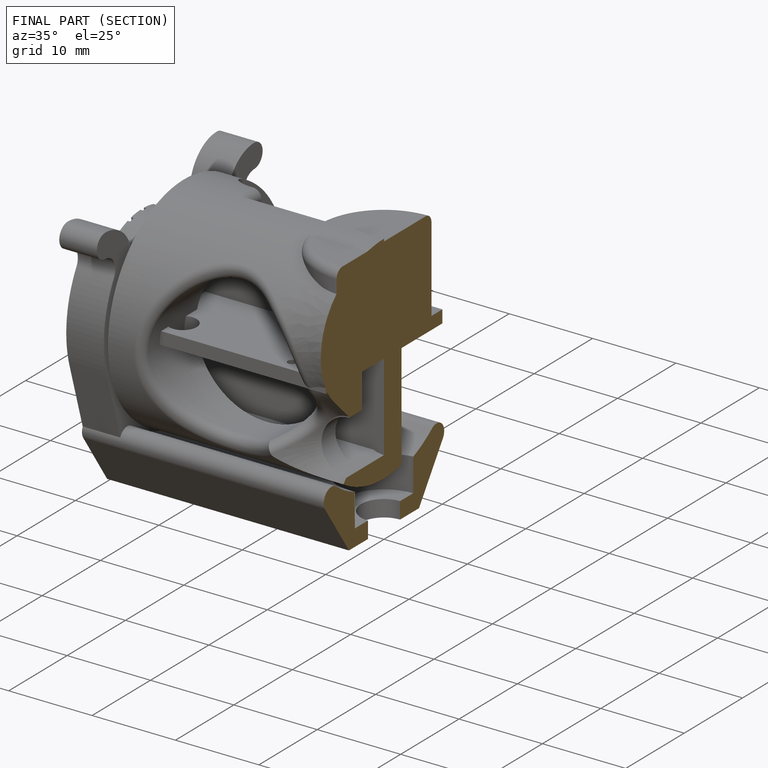
[diagram: finished part — half-section view (interior)]
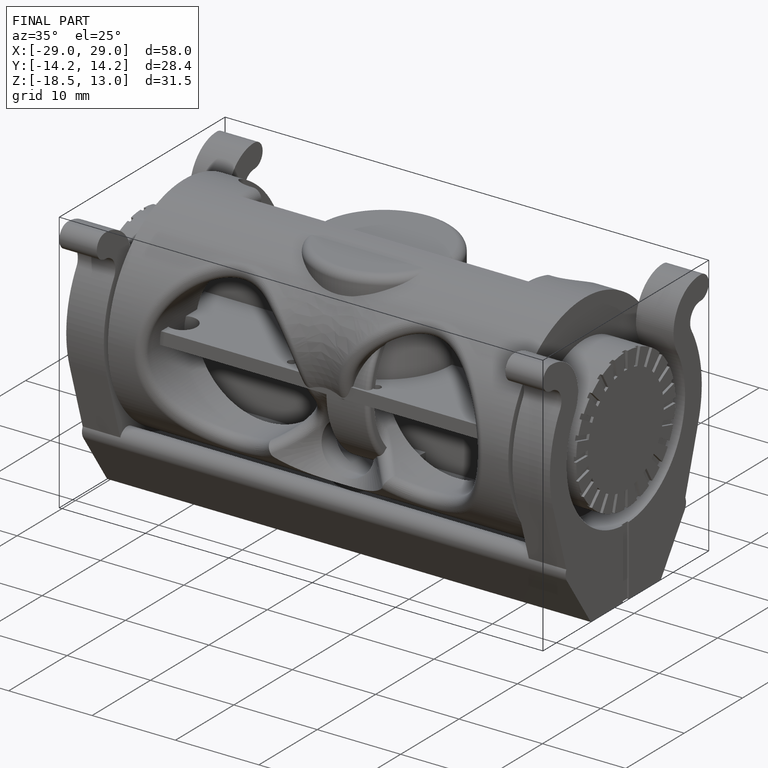
[diagram: finished part — iso view with bounding-box wireframe]
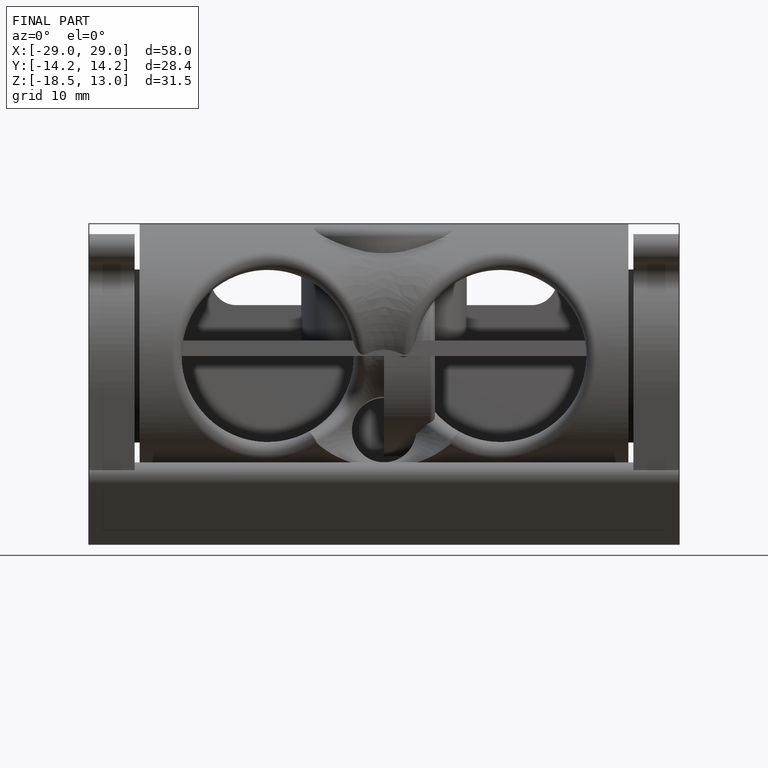
[diagram: finished part — front view with bounding-box wireframe]
